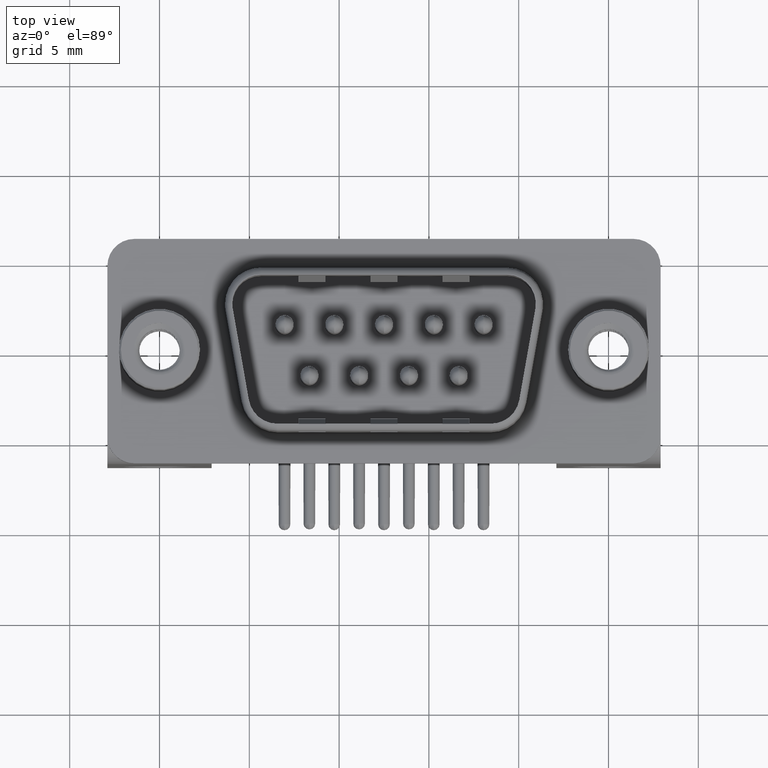
[diagram: clean part render]
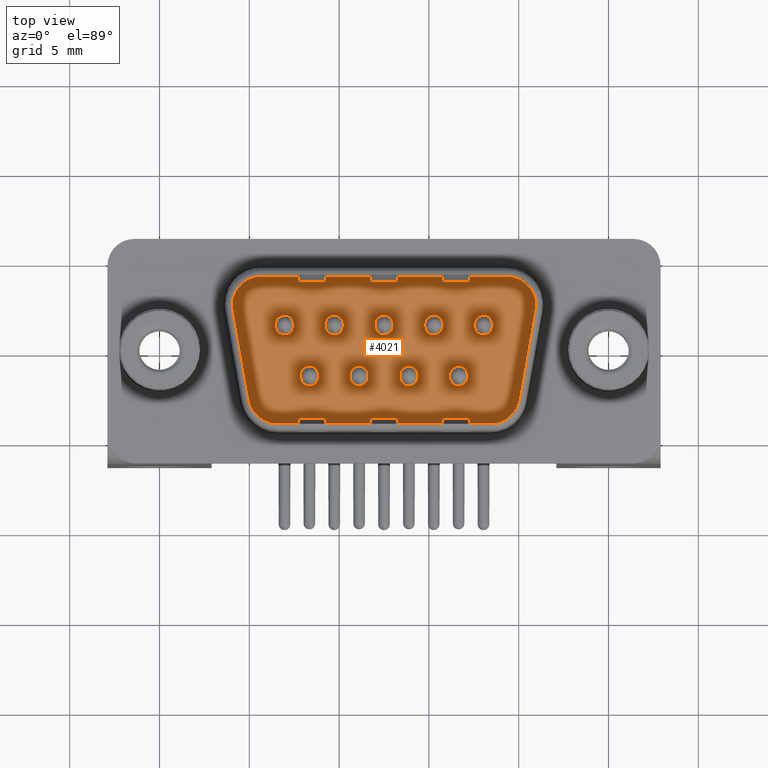
[diagram: same view with one face highlighted and labeled with its STEP entity id]
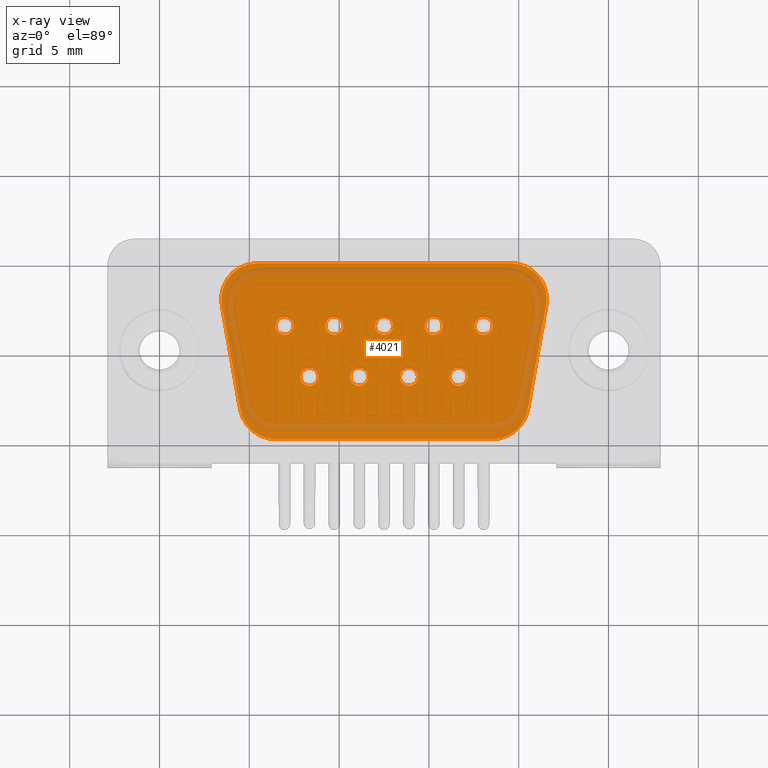
[diagram: x-ray of the same camera — body ghosted, the highlighted face saturated]
A machine part, top view. The second image highlights one B-rep face of the part: STEP entity #4021.
The next image is the same camera in x-ray: the body ghosted, the highlighted face saturated — about 13% of this face is hidden behind the body in this view.
In plain terms, the highlighted planar face has unit normal (0, 0, 1).
Its self-contained STEP definition (entity closure, byte-faithful):
#4 = CIRCLE ( 'NONE', #16594, 0.4999999999999987200 ) ;
#5 = EDGE_LOOP ( 'NONE', ( #3172, #2458 ) ) ;
#92 = VERTEX_POINT ( 'NONE', #4432 ) ;
#310 = VERTEX_POINT ( 'NONE', #14106 ) ;
#384 = EDGE_CURVE ( 'NONE', #1026, #5408, #3453, .T. ) ;
#408 = AXIS2_PLACEMENT_3D ( 'NONE', #4114, #16167, #5838 ) ;
#431 = VERTEX_POINT ( 'NONE', #21311 ) ;
#505 = FACE_BOUND ( 'NONE', #2500, .T. ) ;
#760 = ORIENTED_EDGE ( 'NONE', *, *, #6343, .F. ) ;
#837 = ORIENTED_EDGE ( 'NONE', *, *, #9072, .F. ) ;
#1014 = DIRECTION ( 'NONE',  ( 0.0000000000000000000, 0.0000000000000000000, 1.000000000000000000 ) ) ;
#1026 = VERTEX_POINT ( 'NONE', #12839 ) ;
#1065 = CARTESIAN_POINT ( 'NONE',  ( 6.960000000000000900, 1.415000000000004300, 0.0000000000000000000 ) ) ;
#1222 = EDGE_CURVE ( 'NONE', #10787, #92, #3832, .T. ) ;
#1336 = CARTESIAN_POINT ( 'NONE',  ( 19.56402843503082400, 4.900000000000003900, 0.0000000000000000000 ) ) ;
#1344 = VERTEX_POINT ( 'NONE', #1336 ) ;
#1364 = DIRECTION ( 'NONE',  ( 1.000000000000000000, 1.435712762696901400E-016, 0.0000000000000000000 ) ) ;
#1392 = CARTESIAN_POINT ( 'NONE',  ( 11.11500000000000200, -1.424999999999995400, 0.0000000000000000000 ) ) ;
#1590 = ORIENTED_EDGE ( 'NONE', *, *, #6026, .F. ) ;
#1663 = EDGE_CURVE ( 'NONE', #9955, #13326, #10024, .T. ) ;
#1683 = CIRCLE ( 'NONE', #4146, 0.5000000000000004400 ) ;
#1747 = AXIS2_PLACEMENT_3D ( 'NONE', #2067, #14133, #3779 ) ;
#1851 = CIRCLE ( 'NONE', #4175, 0.4999999999999952300 ) ;
#2039 = VERTEX_POINT ( 'NONE', #12986 ) ;
#2067 = CARTESIAN_POINT ( 'NONE',  ( 13.88500000000000200, -1.424999999999995400, 0.0000000000000000000 ) ) ;
#2165 = CARTESIAN_POINT ( 'NONE',  ( 5.435971564969176700, 4.900000000000001200, 0.0000000000000000000 ) ) ;
#2192 = CARTESIAN_POINT ( 'NONE',  ( 21.56402843503082400, 2.900000000000004400, 0.0000000000000000000 ) ) ;
#2374 = CARTESIAN_POINT ( 'NONE',  ( 8.345000000000002400, -1.424999999999995400, 0.0000000000000000000 ) ) ;
#2418 = CIRCLE ( 'NONE', #5666, 2.000000000000000000 ) ;
#2458 = ORIENTED_EDGE ( 'NONE', *, *, #4448, .F. ) ;
#2500 = EDGE_LOOP ( 'NONE', ( #10210, #3595 ) ) ;
#2543 = VERTEX_POINT ( 'NONE', #9127 ) ;
#2800 = DIRECTION ( 'NONE',  ( 1.000000000000000000, 0.0000000000000000000, 0.0000000000000000000 ) ) ;
#3080 = CARTESIAN_POINT ( 'NONE',  ( 10.61500000000000400, -1.424999999999995400, 0.0000000000000000000 ) ) ;
#3125 = DIRECTION ( 'NONE',  ( 1.000000000000000000, 0.0000000000000000000, 0.0000000000000000000 ) ) ;
#3172 = ORIENTED_EDGE ( 'NONE', *, *, #11533, .F. ) ;
#3184 = CIRCLE ( 'NONE', #20161, 0.4999999999999987200 ) ;
#3268 = CIRCLE ( 'NONE', #1747, 0.4999999999999987200 ) ;
#3453 = CIRCLE ( 'NONE', #16328, 0.4999999999999987200 ) ;
#3549 = EDGE_CURVE ( 'NONE', #8741, #17047, #8450, .T. ) ;
#3551 = VERTEX_POINT ( 'NONE', #19231 ) ;
#3595 = ORIENTED_EDGE ( 'NONE', *, *, #3914, .F. ) ;
#3779 = DIRECTION ( 'NONE',  ( 1.000000000000000000, 0.0000000000000000000, 0.0000000000000000000 ) ) ;
#3832 = CIRCLE ( 'NONE', #13893, 0.4999999999999987200 ) ;
#3914 = EDGE_CURVE ( 'NONE', #5408, #1026, #3184, .T. ) ;
#4009 = CARTESIAN_POINT ( 'NONE',  ( 6.960000000000000900, 1.415000000000004300, 0.0000000000000000000 ) ) ;
#4021 = ADVANCED_FACE ( 'NONE', ( #14256, #9658, #14808, #5067, #505, #18296, #13714, #9120, #4525, #22422 ), #21715, .T. ) ;
#4029 = EDGE_CURVE ( 'NONE', #18138, #17397, #8559, .T. ) ;
#4095 = DIRECTION ( 'NONE',  ( 1.000000000000000000, 0.0000000000000000000, 0.0000000000000000000 ) ) ;
#4114 = CARTESIAN_POINT ( 'NONE',  ( 16.65500000000000500, -1.424999999999995400, 0.0000000000000000000 ) ) ;
#4122 = EDGE_LOOP ( 'NONE', ( #9489, #4730 ) ) ;
#4146 = AXIS2_PLACEMENT_3D ( 'NONE', #7049, #19117, #8779 ) ;
#4157 = CARTESIAN_POINT ( 'NONE',  ( 12.50000000000000000, 1.415000000000004300, 0.0000000000000000000 ) ) ;
#4175 = AXIS2_PLACEMENT_3D ( 'NONE', #6449, #18531, #8198 ) ;
#4192 = DIRECTION ( 'NONE',  ( 0.0000000000000000000, 0.0000000000000000000, 1.000000000000000000 ) ) ;
#4193 = DIRECTION ( 'NONE',  ( 0.0000000000000000000, 0.0000000000000000000, 1.000000000000000000 ) ) ;
#4302 = CARTESIAN_POINT ( 'NONE',  ( 15.27000000000000100, 1.415000000000004300, 0.0000000000000000000 ) ) ;
#4303 = EDGE_LOOP ( 'NONE', ( #17228, #837 ) ) ;
#4432 = CARTESIAN_POINT ( 'NONE',  ( 8.845000000000000600, -1.424999999999995400, 0.0000000000000000000 ) ) ;
#4448 = EDGE_CURVE ( 'NONE', #3551, #20636, #5969, .T. ) ;
#4483 = CIRCLE ( 'NONE', #21528, 0.4999999999999987200 ) ;
#4525 = FACE_BOUND ( 'NONE', #4303, .T. ) ;
#4609 = EDGE_LOOP ( 'NONE', ( #15762, #14666 ) ) ;
#4705 = ORIENTED_EDGE ( 'NONE', *, *, #13679, .F. ) ;
#4730 = ORIENTED_EDGE ( 'NONE', *, *, #21070, .F. ) ;
#4942 = DIRECTION ( 'NONE',  ( -1.000000000000000000, -1.227857087447608800E-016, -0.0000000000000000000 ) ) ;
#5067 = FACE_BOUND ( 'NONE', #18887, .T. ) ;
#5408 = VERTEX_POINT ( 'NONE', #5942 ) ;
#5558 = CARTESIAN_POINT ( 'NONE',  ( 6.458668053078280700, -2.899999999999998600, 0.0000000000000000000 ) ) ;
#5614 = CARTESIAN_POINT ( 'NONE',  ( 12.00000000000000200, 1.415000000000004300, 0.0000000000000000000 ) ) ;
#5666 = AXIS2_PLACEMENT_3D ( 'NONE', #5558, #17616, #7273 ) ;
#5735 = CIRCLE ( 'NONE', #13223, 0.5000000000000004400 ) ;
#5755 = DIRECTION ( 'NONE',  ( 1.000000000000000000, 0.0000000000000000000, 0.0000000000000000000 ) ) ;
#5822 = CARTESIAN_POINT ( 'NONE',  ( 17.15500000000000500, -1.424999999999995400, 0.0000000000000000000 ) ) ;
#5838 = DIRECTION ( 'NONE',  ( 1.000000000000000000, 0.0000000000000000000, 0.0000000000000000000 ) ) ;
#5873 = CARTESIAN_POINT ( 'NONE',  ( 8.345000000000002400, -1.424999999999995400, 0.0000000000000000000 ) ) ;
#5942 = CARTESIAN_POINT ( 'NONE',  ( 9.230000000000002200, 1.415000000000004300, 0.0000000000000000000 ) ) ;
#5969 = CIRCLE ( 'NONE', #21967, 0.4999999999999987200 ) ;
#5995 = ORIENTED_EDGE ( 'NONE', *, *, #4029, .F. ) ;
#6026 = EDGE_CURVE ( 'NONE', #17496, #9129, #7290, .T. ) ;
#6043 = ORIENTED_EDGE ( 'NONE', *, *, #7117, .T. ) ;
#6045 = DIRECTION ( 'NONE',  ( 1.000000000000000000, 0.0000000000000000000, 0.0000000000000000000 ) ) ;
#6062 = DIRECTION ( 'NONE',  ( 0.0000000000000000000, 0.0000000000000000000, 1.000000000000000000 ) ) ;
#6217 = EDGE_CURVE ( 'NONE', #12453, #431, #21942, .T. ) ;
#6279 = DIRECTION ( 'NONE',  ( 0.0000000000000000000, 0.0000000000000000000, 1.000000000000000000 ) ) ;
#6343 = EDGE_CURVE ( 'NONE', #92, #10787, #19715, .T. ) ;
#6449 = CARTESIAN_POINT ( 'NONE',  ( 15.27000000000000100, 1.415000000000004300, 0.0000000000000000000 ) ) ;
#6556 = EDGE_CURVE ( 'NONE', #12866, #1344, #7268, .T. ) ;
#7049 = CARTESIAN_POINT ( 'NONE',  ( 18.03999999999999900, 1.415000000000004300, 0.0000000000000000000 ) ) ;
#7117 = EDGE_CURVE ( 'NONE', #21760, #8741, #14268, .T. ) ;
#7191 = VERTEX_POINT ( 'NONE', #11825 ) ;
#7238 = AXIS2_PLACEMENT_3D ( 'NONE', #9488, #14937, #15006 ) ;
#7268 = CIRCLE ( 'NONE', #8030, 1.999999999999998200 ) ;
#7273 = DIRECTION ( 'NONE',  ( -1.000000000000000000, 0.0000000000000000000, 0.0000000000000000000 ) ) ;
#7290 = CIRCLE ( 'NONE', #408, 0.5000000000000004400 ) ;
#7408 = VERTEX_POINT ( 'NONE', #10605 ) ;
#7670 = VERTEX_POINT ( 'NONE', #16482 ) ;
#7694 = CARTESIAN_POINT ( 'NONE',  ( 9.730000000000000400, 1.415000000000004300, 0.0000000000000000000 ) ) ;
#7777 = CIRCLE ( 'NONE', #17217, 0.4999999999999987200 ) ;
#7927 = AXIS2_PLACEMENT_3D ( 'NONE', #1392, #13452, #3125 ) ;
#8030 = AXIS2_PLACEMENT_3D ( 'NONE', #11321, #1014, #13070 ) ;
#8178 = DIRECTION ( 'NONE',  ( 1.000000000000000000, 0.0000000000000000000, 0.0000000000000000000 ) ) ;
#8198 = DIRECTION ( 'NONE',  ( 1.000000000000000000, 0.0000000000000000000, 0.0000000000000000000 ) ) ;
#8206 = DIRECTION ( 'NONE',  ( 0.0000000000000000000, 0.0000000000000000000, 1.000000000000000000 ) ) ;
#8314 = EDGE_CURVE ( 'NONE', #1344, #21760, #21321, .T. ) ;
#8450 = LINE ( 'NONE', #19640, #13197 ) ;
#8559 = CIRCLE ( 'NONE', #11607, 0.4999999999999987200 ) ;
#8741 = VERTEX_POINT ( 'NONE', #21752 ) ;
#8779 = DIRECTION ( 'NONE',  ( 1.000000000000000000, 0.0000000000000000000, 0.0000000000000000000 ) ) ;
#9072 = EDGE_CURVE ( 'NONE', #7670, #7408, #17756, .T. ) ;
#9120 = FACE_BOUND ( 'NONE', #4609, .T. ) ;
#9127 = CARTESIAN_POINT ( 'NONE',  ( 14.77000000000000700, 1.415000000000004300, 0.0000000000000000000 ) ) ;
#9129 = VERTEX_POINT ( 'NONE', #5822 ) ;
#9162 = CARTESIAN_POINT ( 'NONE',  ( 13.88500000000000200, -1.424999999999995400, 0.0000000000000000000 ) ) ;
#9408 = DIRECTION ( 'NONE',  ( 0.0000000000000000000, 0.0000000000000000000, 1.000000000000000000 ) ) ;
#9414 = DIRECTION ( 'NONE',  ( 0.0000000000000000000, 0.0000000000000000000, 1.000000000000000000 ) ) ;
#9488 = CARTESIAN_POINT ( 'NONE',  ( 18.54133194692172300, -2.899999999999997200, 0.0000000000000000000 ) ) ;
#9489 = ORIENTED_EDGE ( 'NONE', *, *, #14701, .F. ) ;
#9658 = FACE_BOUND ( 'NONE', #5, .T. ) ;
#9796 = EDGE_LOOP ( 'NONE', ( #4705, #5995 ) ) ;
#9803 = CARTESIAN_POINT ( 'NONE',  ( 5.435971564969176700, 2.900000000000002600, 0.0000000000000000000 ) ) ;
#9955 = VERTEX_POINT ( 'NONE', #14669 ) ;
#10024 = CIRCLE ( 'NONE', #7238, 2.000000000000001800 ) ;
#10210 = ORIENTED_EDGE ( 'NONE', *, *, #384, .F. ) ;
#10218 = CARTESIAN_POINT ( 'NONE',  ( 20.51094745294614100, -3.247296355333858700, 0.0000000000000000000 ) ) ;
#10309 = DIRECTION ( 'NONE',  ( 1.000000000000000000, 0.0000000000000000000, -0.0000000000000000000 ) ) ;
#10336 = CARTESIAN_POINT ( 'NONE',  ( 9.730000000000000400, 1.415000000000004300, 0.0000000000000000000 ) ) ;
#10358 = DIRECTION ( 'NONE',  ( 0.0000000000000000000, 0.0000000000000000000, 1.000000000000000000 ) ) ;
#10519 = CARTESIAN_POINT ( 'NONE',  ( 7.845000000000003300, -1.424999999999995400, 0.0000000000000000000 ) ) ;
#10605 = CARTESIAN_POINT ( 'NONE',  ( 7.460000000000000000, 1.415000000000004300, 0.0000000000000000000 ) ) ;
#10787 = VERTEX_POINT ( 'NONE', #10519 ) ;
#11243 = EDGE_CURVE ( 'NONE', #17335, #7191, #17946, .T. ) ;
#11252 = VECTOR ( 'NONE', #13596, 1000.000000000000100 ) ;
#11321 = CARTESIAN_POINT ( 'NONE',  ( 19.56402843503082400, 2.900000000000004400, 0.0000000000000000000 ) ) ;
#11528 = DIRECTION ( 'NONE',  ( 1.000000000000000000, 0.0000000000000000000, 0.0000000000000000000 ) ) ;
#11533 = EDGE_CURVE ( 'NONE', #20636, #3551, #3268, .T. ) ;
#11590 = CARTESIAN_POINT ( 'NONE',  ( 6.458668053078279000, -4.899999999999997700, 0.0000000000000000000 ) ) ;
#11600 = DIRECTION ( 'NONE',  ( 0.0000000000000000000, 0.0000000000000000000, 1.000000000000000000 ) ) ;
#11607 = AXIS2_PLACEMENT_3D ( 'NONE', #4157, #20759, #20736 ) ;
#11702 = CARTESIAN_POINT ( 'NONE',  ( 6.458668053078279000, -4.899999999999997700, 0.0000000000000000000 ) ) ;
#11749 = ORIENTED_EDGE ( 'NONE', *, *, #16707, .T. ) ;
#11807 = ORIENTED_EDGE ( 'NONE', *, *, #14714, .T. ) ;
#11825 = CARTESIAN_POINT ( 'NONE',  ( 11.61500000000000000, -1.424999999999995400, 0.0000000000000000000 ) ) ;
#11849 = AXIS2_PLACEMENT_3D ( 'NONE', #4009, #16089, #5755 ) ;
#12453 = VERTEX_POINT ( 'NONE', #21808 ) ;
#12476 = ORIENTED_EDGE ( 'NONE', *, *, #3549, .T. ) ;
#12768 = AXIS2_PLACEMENT_3D ( 'NONE', #18534, #10358, #10309 ) ;
#12839 = CARTESIAN_POINT ( 'NONE',  ( 10.22999999999999900, 1.415000000000004300, 0.0000000000000000000 ) ) ;
#12866 = VERTEX_POINT ( 'NONE', #2192 ) ;
#12986 = CARTESIAN_POINT ( 'NONE',  ( 21.53364394105523900, 2.552703644666142400, 0.0000000000000000000 ) ) ;
#13070 = DIRECTION ( 'NONE',  ( -1.000000000000000000, 0.0000000000000000000, 0.0000000000000000000 ) ) ;
#13114 = AXIS2_PLACEMENT_3D ( 'NONE', #16621, #6279, #18349 ) ;
#13127 = DIRECTION ( 'NONE',  ( 0.0000000000000000000, 0.0000000000000000000, 1.000000000000000000 ) ) ;
#13197 = VECTOR ( 'NONE', #20168, 999.9999999999998900 ) ;
#13223 = AXIS2_PLACEMENT_3D ( 'NONE', #19779, #9414, #21568 ) ;
#13326 = VERTEX_POINT ( 'NONE', #10218 ) ;
#13452 = DIRECTION ( 'NONE',  ( 0.0000000000000000000, 0.0000000000000000000, 1.000000000000000000 ) ) ;
#13473 = CARTESIAN_POINT ( 'NONE',  ( 13.00000000000000000, 1.415000000000004300, 0.0000000000000000000 ) ) ;
#13478 = DIRECTION ( 'NONE',  ( 1.000000000000000000, 0.0000000000000000000, 0.0000000000000000000 ) ) ;
#13504 = EDGE_CURVE ( 'NONE', #17047, #17302, #2418, .T. ) ;
#13596 = DIRECTION ( 'NONE',  ( 0.1736481776669305500, 0.9848077530122080200, -0.0000000000000000000 ) ) ;
#13679 = EDGE_CURVE ( 'NONE', #17397, #18138, #7777, .T. ) ;
#13705 = DIRECTION ( 'NONE',  ( 0.0000000000000000000, 0.0000000000000000000, 1.000000000000000000 ) ) ;
#13714 = FACE_BOUND ( 'NONE', #4122, .T. ) ;
#13880 = ORIENTED_EDGE ( 'NONE', *, *, #11243, .F. ) ;
#13893 = AXIS2_PLACEMENT_3D ( 'NONE', #5873, #13705, #13478 ) ;
#14106 = CARTESIAN_POINT ( 'NONE',  ( 15.76999999999999600, 1.415000000000004300, 0.0000000000000000000 ) ) ;
#14133 = DIRECTION ( 'NONE',  ( 0.0000000000000000000, 0.0000000000000000000, 1.000000000000000000 ) ) ;
#14134 = AXIS2_PLACEMENT_3D ( 'NONE', #9803, #21941, #11528 ) ;
#14256 = FACE_BOUND ( 'NONE', #14386, .T. ) ;
#14268 = CIRCLE ( 'NONE', #14134, 2.000000000000000000 ) ;
#14386 = EDGE_LOOP ( 'NONE', ( #17144, #13880 ) ) ;
#14441 = DIRECTION ( 'NONE',  ( 0.0000000000000000000, 0.0000000000000000000, 1.000000000000000000 ) ) ;
#14530 = CARTESIAN_POINT ( 'NONE',  ( 19.56402843503082400, 2.900000000000004400, 0.0000000000000000000 ) ) ;
#14531 = CARTESIAN_POINT ( 'NONE',  ( 11.11500000000000200, -1.424999999999995400, 0.0000000000000000000 ) ) ;
#14666 = ORIENTED_EDGE ( 'NONE', *, *, #20218, .F. ) ;
#14669 = CARTESIAN_POINT ( 'NONE',  ( 18.54133194692172300, -4.899999999999996800, 0.0000000000000000000 ) ) ;
#14687 = ORIENTED_EDGE ( 'NONE', *, *, #8314, .T. ) ;
#14701 = EDGE_CURVE ( 'NONE', #310, #2543, #1851, .T. ) ;
#14714 = EDGE_CURVE ( 'NONE', #13326, #2039, #20454, .T. ) ;
#14808 = FACE_BOUND ( 'NONE', #18228, .T. ) ;
#14937 = DIRECTION ( 'NONE',  ( 0.0000000000000000000, 0.0000000000000000000, 1.000000000000000000 ) ) ;
#15006 = DIRECTION ( 'NONE',  ( 1.000000000000000000, 0.0000000000000000000, 0.0000000000000000000 ) ) ;
#15244 = CARTESIAN_POINT ( 'NONE',  ( 21.53364394105523900, 2.552703644666142000, 0.0000000000000000000 ) ) ;
#15503 = CARTESIAN_POINT ( 'NONE',  ( 16.15500000000000100, -1.424999999999995400, 0.0000000000000000000 ) ) ;
#15762 = ORIENTED_EDGE ( 'NONE', *, *, #6217, .F. ) ;
#16068 = VECTOR ( 'NONE', #1364, 1000.000000000000000 ) ;
#16083 = EDGE_CURVE ( 'NONE', #7408, #7670, #4483, .T. ) ;
#16089 = DIRECTION ( 'NONE',  ( 0.0000000000000000000, 0.0000000000000000000, 1.000000000000000000 ) ) ;
#16167 = DIRECTION ( 'NONE',  ( 0.0000000000000000000, 0.0000000000000000000, 1.000000000000000000 ) ) ;
#16258 = DIRECTION ( 'NONE',  ( -1.000000000000000000, 0.0000000000000000000, 0.0000000000000000000 ) ) ;
#16259 = DIRECTION ( 'NONE',  ( 1.000000000000000000, 0.0000000000000000000, 0.0000000000000000000 ) ) ;
#16328 = AXIS2_PLACEMENT_3D ( 'NONE', #10336, #9408, #21703 ) ;
#16374 = DIRECTION ( 'NONE',  ( 0.0000000000000000000, 0.0000000000000000000, 1.000000000000000000 ) ) ;
#16394 = CARTESIAN_POINT ( 'NONE',  ( 12.50000000000000000, 1.415000000000004300, 0.0000000000000000000 ) ) ;
#16482 = CARTESIAN_POINT ( 'NONE',  ( 6.460000000000002600, 1.415000000000004300, 0.0000000000000000000 ) ) ;
#16594 = AXIS2_PLACEMENT_3D ( 'NONE', #14531, #4193, #16259 ) ;
#16603 = LINE ( 'NONE', #11702, #16068 ) ;
#16621 = CARTESIAN_POINT ( 'NONE',  ( 18.03999999999999900, 1.415000000000004300, 0.0000000000000000000 ) ) ;
#16668 = VECTOR ( 'NONE', #4942, 1000.000000000000000 ) ;
#16707 = EDGE_CURVE ( 'NONE', #17302, #9955, #16603, .T. ) ;
#16773 = CARTESIAN_POINT ( 'NONE',  ( 14.38500000000000000, -1.424999999999995400, 0.0000000000000000000 ) ) ;
#17002 = CIRCLE ( 'NONE', #19040, 0.4999999999999952300 ) ;
#17047 = VERTEX_POINT ( 'NONE', #17721 ) ;
#17144 = ORIENTED_EDGE ( 'NONE', *, *, #21854, .F. ) ;
#17217 = AXIS2_PLACEMENT_3D ( 'NONE', #16394, #6062, #18135 ) ;
#17228 = ORIENTED_EDGE ( 'NONE', *, *, #16083, .F. ) ;
#17286 = ORIENTED_EDGE ( 'NONE', *, *, #18895, .F. ) ;
#17302 = VERTEX_POINT ( 'NONE', #11590 ) ;
#17335 = VERTEX_POINT ( 'NONE', #3080 ) ;
#17397 = VERTEX_POINT ( 'NONE', #13473 ) ;
#17496 = VERTEX_POINT ( 'NONE', #15503 ) ;
#17616 = DIRECTION ( 'NONE',  ( 0.0000000000000000000, 0.0000000000000000000, 1.000000000000000000 ) ) ;
#17721 = CARTESIAN_POINT ( 'NONE',  ( 4.489052547053864500, -3.247296355333861000, 0.0000000000000000000 ) ) ;
#17756 = CIRCLE ( 'NONE', #11849, 0.4999999999999987200 ) ;
#17946 = CIRCLE ( 'NONE', #7927, 0.4999999999999987200 ) ;
#18135 = DIRECTION ( 'NONE',  ( 1.000000000000000000, 0.0000000000000000000, 0.0000000000000000000 ) ) ;
#18138 = VERTEX_POINT ( 'NONE', #5614 ) ;
#18228 = EDGE_LOOP ( 'NONE', ( #17286, #1590 ) ) ;
#18296 = FACE_BOUND ( 'NONE', #9796, .T. ) ;
#18349 = DIRECTION ( 'NONE',  ( 1.000000000000000000, 0.0000000000000000000, 0.0000000000000000000 ) ) ;
#18531 = DIRECTION ( 'NONE',  ( 0.0000000000000000000, 0.0000000000000000000, 1.000000000000000000 ) ) ;
#18534 = CARTESIAN_POINT ( 'NONE',  ( 18.54133194692172300, -2.899999999999997200, 0.0000000000000000000 ) ) ;
#18770 = DIRECTION ( 'NONE',  ( 1.000000000000000000, 0.0000000000000000000, 0.0000000000000000000 ) ) ;
#18887 = EDGE_LOOP ( 'NONE', ( #760, #20008 ) ) ;
#18895 = EDGE_CURVE ( 'NONE', #9129, #17496, #5735, .T. ) ;
#19040 = AXIS2_PLACEMENT_3D ( 'NONE', #4302, #16374, #6045 ) ;
#19117 = DIRECTION ( 'NONE',  ( 0.0000000000000000000, 0.0000000000000000000, 1.000000000000000000 ) ) ;
#19134 = ORIENTED_EDGE ( 'NONE', *, *, #1663, .T. ) ;
#19231 = CARTESIAN_POINT ( 'NONE',  ( 13.38500000000000300, -1.424999999999995400, 0.0000000000000000000 ) ) ;
#19490 = EDGE_CURVE ( 'NONE', #2039, #12866, #21974, .T. ) ;
#19640 = CARTESIAN_POINT ( 'NONE',  ( 3.466356058944761700, 2.552703644666139700, 0.0000000000000000000 ) ) ;
#19715 = CIRCLE ( 'NONE', #20077, 0.4999999999999987200 ) ;
#19779 = CARTESIAN_POINT ( 'NONE',  ( 16.65500000000000500, -1.424999999999995400, 0.0000000000000000000 ) ) ;
#19854 = ORIENTED_EDGE ( 'NONE', *, *, #19490, .T. ) ;
#20008 = ORIENTED_EDGE ( 'NONE', *, *, #1222, .F. ) ;
#20077 = AXIS2_PLACEMENT_3D ( 'NONE', #2374, #14441, #4095 ) ;
#20161 = AXIS2_PLACEMENT_3D ( 'NONE', #7694, #8206, #8178 ) ;
#20168 = DIRECTION ( 'NONE',  ( 0.1736481776669311600, -0.9848077530122080200, 0.0000000000000000000 ) ) ;
#20218 = EDGE_CURVE ( 'NONE', #431, #12453, #1683, .T. ) ;
#20438 = CARTESIAN_POINT ( 'NONE',  ( 5.435971564969176700, 4.900000000000002100, 0.0000000000000000000 ) ) ;
#20454 = LINE ( 'NONE', #15244, #11252 ) ;
#20636 = VERTEX_POINT ( 'NONE', #16773 ) ;
#20736 = DIRECTION ( 'NONE',  ( 1.000000000000000000, 0.0000000000000000000, 0.0000000000000000000 ) ) ;
#20759 = DIRECTION ( 'NONE',  ( 0.0000000000000000000, 0.0000000000000000000, 1.000000000000000000 ) ) ;
#20784 = ORIENTED_EDGE ( 'NONE', *, *, #6556, .T. ) ;
#20913 = ORIENTED_EDGE ( 'NONE', *, *, #13504, .T. ) ;
#21070 = EDGE_CURVE ( 'NONE', #2543, #310, #17002, .T. ) ;
#21245 = EDGE_LOOP ( 'NONE', ( #19134, #11807, #19854, #20784, #14687, #6043, #12476, #20913, #11749 ) ) ;
#21311 = CARTESIAN_POINT ( 'NONE',  ( 17.53999999999999900, 1.415000000000004300, 0.0000000000000000000 ) ) ;
#21321 = LINE ( 'NONE', #20438, #16668 ) ;
#21528 = AXIS2_PLACEMENT_3D ( 'NONE', #1065, #13127, #2800 ) ;
#21568 = DIRECTION ( 'NONE',  ( 1.000000000000000000, 0.0000000000000000000, 0.0000000000000000000 ) ) ;
#21683 = AXIS2_PLACEMENT_3D ( 'NONE', #14530, #4192, #16258 ) ;
#21703 = DIRECTION ( 'NONE',  ( 1.000000000000000000, 0.0000000000000000000, 0.0000000000000000000 ) ) ;
#21715 = PLANE ( 'NONE',  #12768 ) ;
#21752 = CARTESIAN_POINT ( 'NONE',  ( 3.466356058944761700, 2.552703644666139700, 0.0000000000000000000 ) ) ;
#21760 = VERTEX_POINT ( 'NONE', #2165 ) ;
#21808 = CARTESIAN_POINT ( 'NONE',  ( 18.53999999999999900, 1.415000000000004300, 0.0000000000000000000 ) ) ;
#21854 = EDGE_CURVE ( 'NONE', #7191, #17335, #4, .T. ) ;
#21941 = DIRECTION ( 'NONE',  ( 0.0000000000000000000, 0.0000000000000000000, 1.000000000000000000 ) ) ;
#21942 = CIRCLE ( 'NONE', #13114, 0.5000000000000004400 ) ;
#21967 = AXIS2_PLACEMENT_3D ( 'NONE', #9162, #11600, #18770 ) ;
#21974 = CIRCLE ( 'NONE', #21683, 1.999999999999998200 ) ;
#22422 = FACE_OUTER_BOUND ( 'NONE', #21245, .T. ) ;